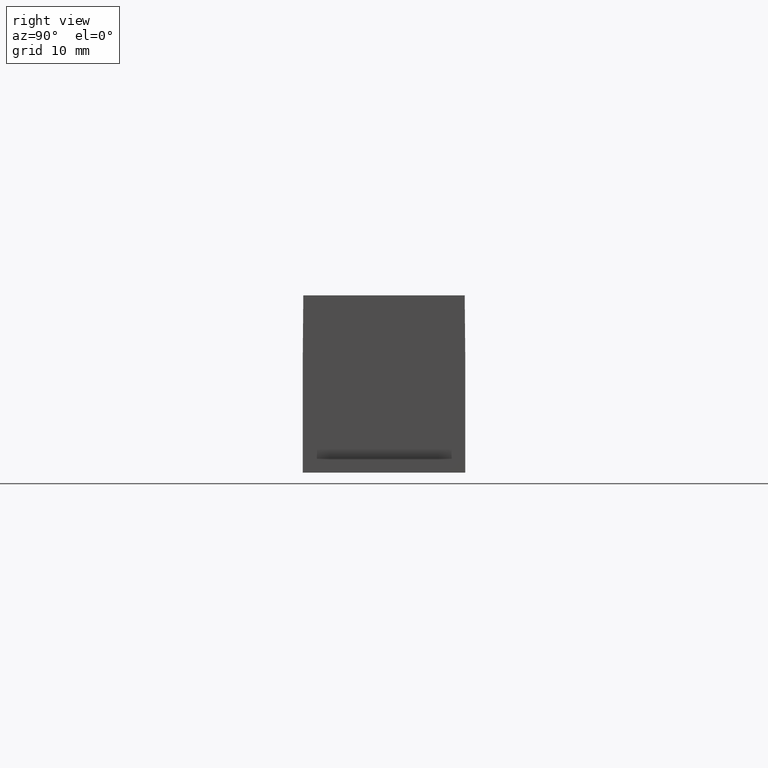
[diagram: clean part render]
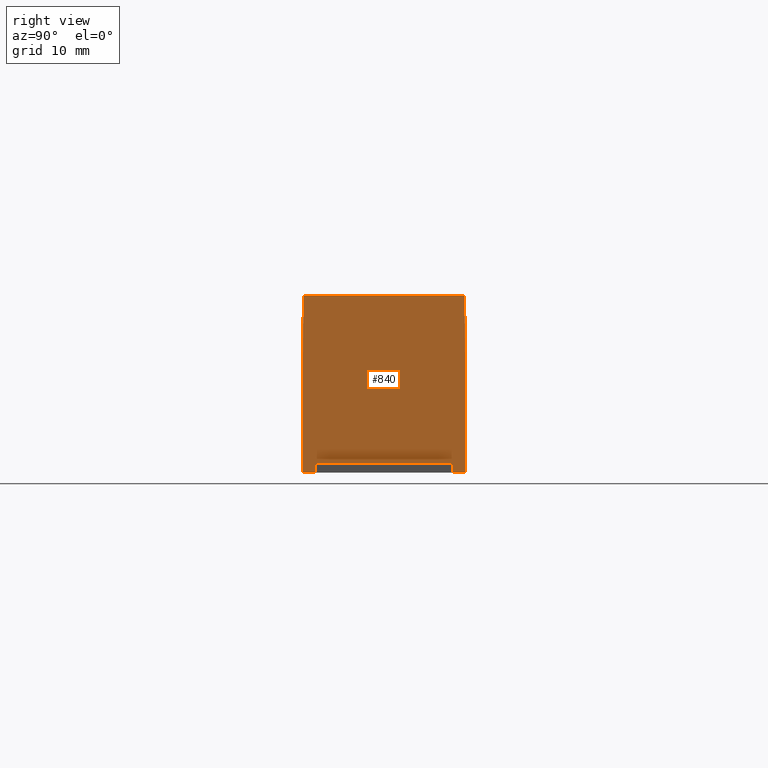
[diagram: same view with one face highlighted and labeled with its STEP entity id]
A machine part, right view. The second image highlights one B-rep face of the part: STEP entity #840.
In plain terms, the highlighted planar face has unit normal (1, 0, 0).
Its self-contained STEP definition (entity closure, byte-faithful):
#10=CARTESIAN_POINT('',(-43.4823377413369,-194.553083115857,
1.4210854715202E-14));
#20=DIRECTION('',(1.,0.,0.));
#30=DIRECTION('',(0.,-1.,0.));
#40=AXIS2_PLACEMENT_3D('',#10,#20,#30);
#50=PLANE('',#40);
#60=CARTESIAN_POINT('',(-43.4823377413369,-193.978083115857,
21.9222636806417));
#70=DIRECTION('',(0.,1.,-2.22044604925031E-16));
#80=VECTOR('',#70,1.);
#90=LINE('',#60,#80);
#100=CARTESIAN_POINT('',(-43.4823377413369,-195.978083115857,
21.9222639343583));
#110=VERTEX_POINT('',#100);
#120=CARTESIAN_POINT('',(-43.4823377413369,-180.88578301714,
21.9222639343583));
#130=VERTEX_POINT('',#120);
#140=EDGE_CURVE('',#110,#130,#90,.T.);
#150=ORIENTED_EDGE('',*,*,#140,.F.);
#160=CARTESIAN_POINT('',(-43.4823377413369,-171.978083115857,
21.8445273612835));
#170=DIRECTION('',(0.,0.999961923064171,-0.00872653549837416));
#180=VECTOR('',#170,1.);
#190=LINE('',#160,#180);
#200=CARTESIAN_POINT('',(-43.4823377413369,-171.978083115857,
21.8445273612835));
#210=VERTEX_POINT('',#200);
#220=EDGE_CURVE('',#130,#210,#190,.T.);
#230=ORIENTED_EDGE('',*,*,#220,.F.);
#240=CARTESIAN_POINT('',(-43.4823377413369,-171.978083115857,
-28.9186980037542));
#250=DIRECTION('',(0.,-2.22044604925031E-16,-1.));
#260=VECTOR('',#250,1.);
#270=LINE('',#240,#260);
#280=CARTESIAN_POINT('',(-43.4823377413369,-171.978083115857,
-7.105427357601E-15));
#290=VERTEX_POINT('',#280);
#300=EDGE_CURVE('',#210,#290,#270,.T.);
#310=ORIENTED_EDGE('',*,*,#300,.F.);
#320=CARTESIAN_POINT('',(-43.4823377413369,-171.978083115857,
-1.4210854715202E-14));
#330=DIRECTION('',(0.,-0.999961923064171,-0.00872653549837371));
#340=VECTOR('',#330,1.);
#350=LINE('',#320,#340);
#360=CARTESIAN_POINT('',(-43.4823377413369,-180.885783017138,
-0.0777363193582481));
#370=VERTEX_POINT('',#360);
#380=EDGE_CURVE('',#290,#370,#350,.T.);
#390=ORIENTED_EDGE('',*,*,#380,.F.);
#400=CARTESIAN_POINT('',(-43.4823377413369,-195.978083115857,
-0.0777363193582694));
#410=DIRECTION('',(0.,1.,-3.33066907387547E-16));
#420=VECTOR('',#410,1.);
#430=LINE('',#400,#420);
#440=CARTESIAN_POINT('',(-43.4823377413369,-195.978083115857,
-0.0777363193582445));
#450=VERTEX_POINT('',#440);
#460=EDGE_CURVE('',#450,#370,#430,.T.);
#470=ORIENTED_EDGE('',*,*,#460,.T.);
#480=CARTESIAN_POINT('',(-43.4823377413369,-195.978083115857,
10.5346862135243));
#490=DIRECTION('',(0.,3.33066907387547E-16,1.));
#500=VECTOR('',#490,1.);
#510=LINE('',#480,#500);
#520=CARTESIAN_POINT('',(-43.4823377413369,-195.978083115857,
1.67226368064173));
#530=VERTEX_POINT('',#520);
#540=EDGE_CURVE('',#450,#530,#510,.T.);
#550=ORIENTED_EDGE('',*,*,#540,.F.);
#560=CARTESIAN_POINT('',(-43.4823377413369,-182.978083115857,
1.67226368064173));
#570=DIRECTION('',(0.,-1.,2.22044604925031E-16));
#580=VECTOR('',#570,1.);
#590=LINE('',#560,#580);
#600=CARTESIAN_POINT('',(-43.4823377413369,-194.728083115857,
1.67226368064173));
#610=VERTEX_POINT('',#600);
#620=EDGE_CURVE('',#610,#530,#590,.T.);
#630=ORIENTED_EDGE('',*,*,#620,.T.);
#640=CARTESIAN_POINT('',(-43.4823377413369,-194.728083115857,
10.9222636806417));
#650=DIRECTION('',(0.,-2.22044604925031E-16,-1.));
#660=VECTOR('',#650,1.);
#670=LINE('',#640,#660);
#680=CARTESIAN_POINT('',(-43.4823377413369,-194.728083115857,
20.1722636806417));
#690=VERTEX_POINT('',#680);
#700=EDGE_CURVE('',#690,#610,#670,.T.);
#710=ORIENTED_EDGE('',*,*,#700,.T.);
#720=CARTESIAN_POINT('',(-43.4823377413369,-182.978083115857,
20.1722636806417));
#730=DIRECTION('',(0.,1.,-2.22044604925031E-16));
#740=VECTOR('',#730,1.);
#750=LINE('',#720,#740);
#760=CARTESIAN_POINT('',(-43.4823377413369,-195.978083115857,
20.1722636806417));
#770=VERTEX_POINT('',#760);
#780=EDGE_CURVE('',#770,#690,#750,.T.);
#790=ORIENTED_EDGE('',*,*,#780,.T.);
#800=EDGE_CURVE('',#770,#110,#510,.T.);
#810=ORIENTED_EDGE('',*,*,#800,.F.);
#820=EDGE_LOOP('',(#810,#790,#710,#630,#550,#470,#390,#310,#230,#150));
#830=FACE_OUTER_BOUND('',#820,.T.);
#840=ADVANCED_FACE('',(#830),#50,.T.);